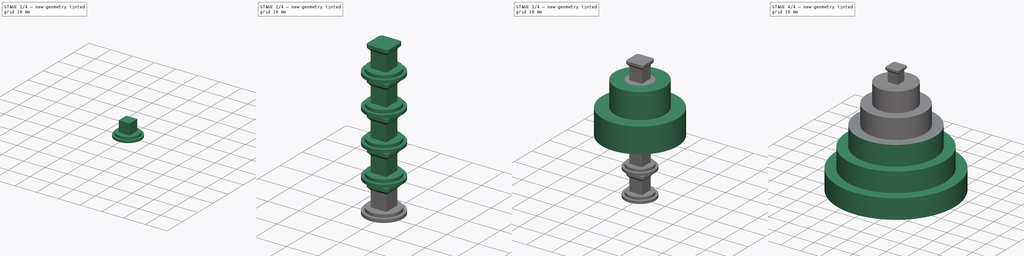
[diagram: build sequence overview — one tinted view per stage of 4, left to right]
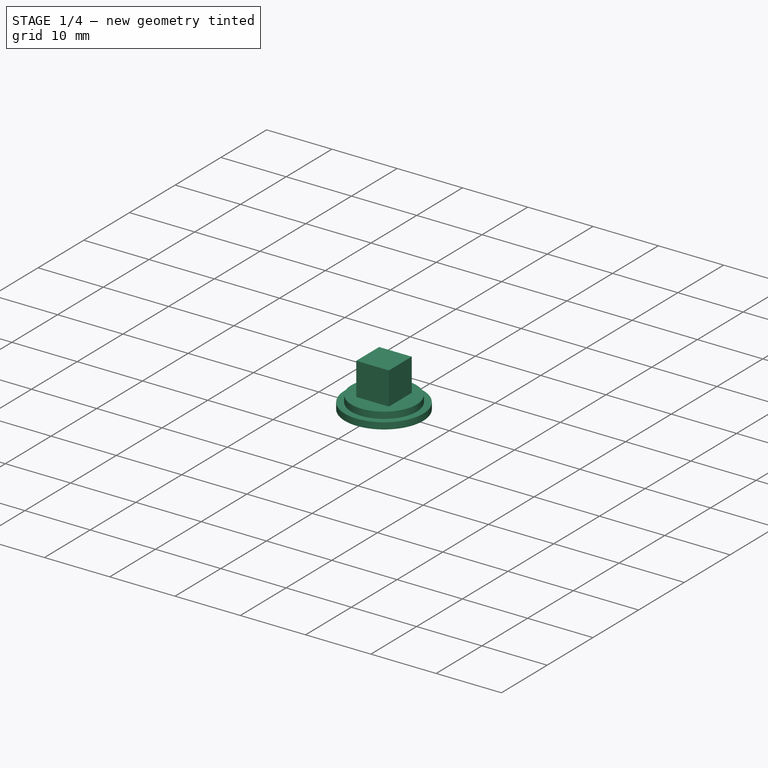
[diagram: stage 1 of 4 — iso view after this stage's code; geometry added in this stage tinted green]
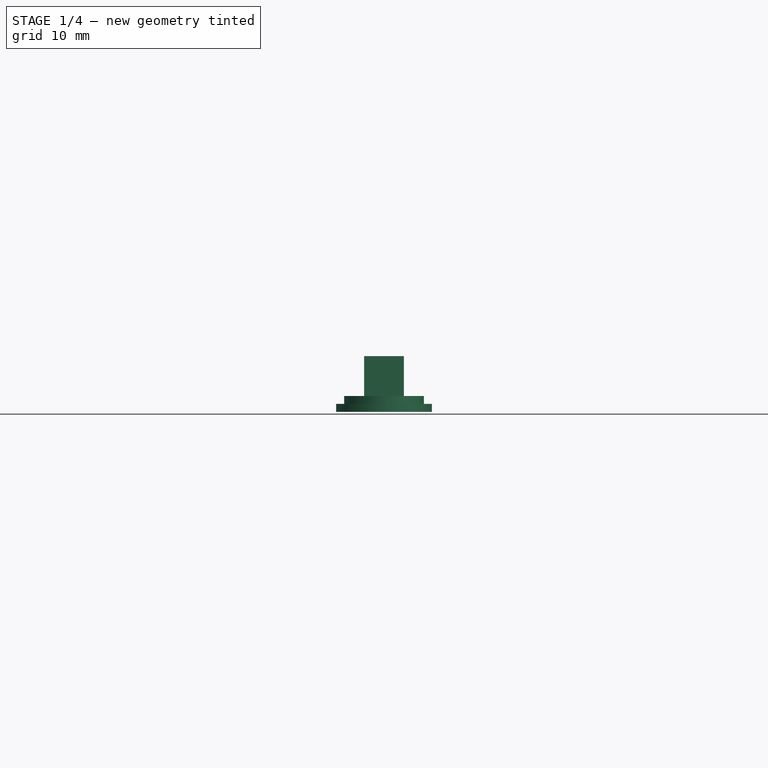
[diagram: stage 1 of 4 — front view after this stage's code; geometry added in this stage tinted green]
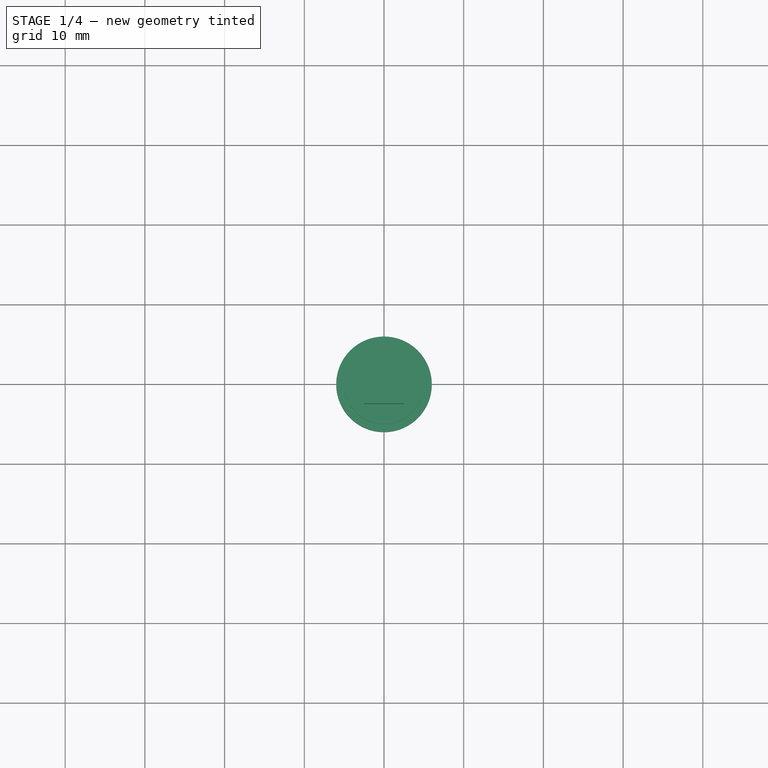
[diagram: stage 1 of 4 — top view after this stage's code; geometry added in this stage tinted green]
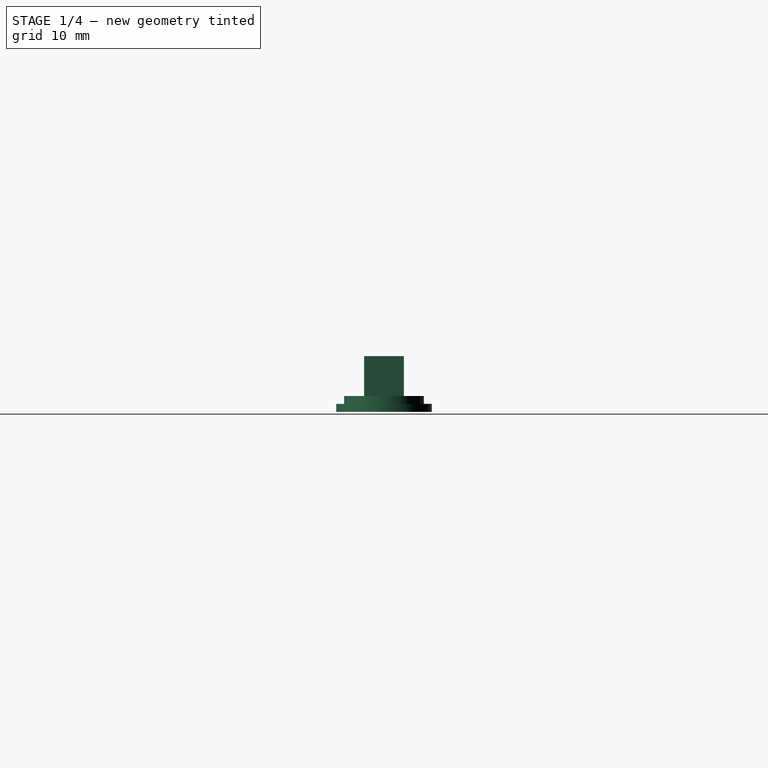
[diagram: stage 1 of 4 — right view after this stage's code; geometry added in this stage tinted green]
FCSTD DOCUMENT  (FreeCAD 0.14R3539 (Git))
Label: hanoi
License: CC-BY 3.0
LicenseURL: http://creativecommons.org/licenses/by/3.0/
objects: Sketcher::SketchObject×9, PartDesign::Revolution×5, PartDesign::Pad×4, PartDesign::Chamfer×1, Part::FeaturePython×1
note: 29 computed .brp shape members not serialized (recipe doc carries the construction recipe); baked Part::Feature solids carry a one-line shape summary decoded from their .brp

FEATURE [Sketcher::SketchObject] Sketch001
  Placement = pos=(0,0,8) rot=(0,0,1;0rad)
  sketch-geometry (1):
    g0: Circle CenterX=0 CenterY=0 CenterZ=0 NormalX=0 NormalY=0 NormalZ=1 Radius=6
  constraints (3):
    c: Radius(g0) = 6
    c: DistanceX(g0) = 0
    c: DistanceY(g0) = 0
FEATURE [PartDesign::Pad] Pad
  Length = 1
  Length2 = 100
  Placement = pos=(0,0,8) rot=(0,0,1;0rad)
  Sketch = -> Sketch001
  Type = 0
FEATURE [Sketcher::SketchObject] Sketch002
  Placement = pos=(0,0,9) rot=(0,0,1;0rad)
  Support = -> Pad [Face3]
  sketch-geometry (1):
    g0: Circle CenterX=0 CenterY=0 CenterZ=0 NormalX=0 NormalY=0 NormalZ=1 Radius=5
  constraints (3):
    c: DistanceX(g0) = 0
    c: DistanceY(g0) = 0
    c: Radius(g0) = 5
FEATURE [PartDesign::Pad] Pad001
  Length = 1
  Length2 = 100
  Placement = pos=(0,0,8) rot=(0,0,1;0rad)
  Sketch = -> Sketch002
  Type = 0
FEATURE [Sketcher::SketchObject] Sketch003
  Placement = pos=(0,0,10) rot=(0,0,1;0rad)
  Support = -> Pad001 [Face5]
  sketch-geometry (4):
    g0: LineSegment StartX=-2.5 StartY=2.5 StartZ=0 EndX=2.5 EndY=2.5 EndZ=0
    g1: LineSegment StartX=2.5 StartY=2.5 StartZ=0 EndX=2.5 EndY=-2.5 EndZ=0
    g2: LineSegment StartX=2.5 StartY=-2.5 StartZ=0 EndX=-2.5 EndY=-2.5 EndZ=0
    g3: LineSegment StartX=-2.5 StartY=-2.5 StartZ=0 EndX=-2.5 EndY=2.5 EndZ=0
  constraints (11):
    c: Coincident(g0,g1)
    c: Coincident(g1,g2)
    c: Coincident(g2,g3)
    c: Coincident(g3,g0)
    c: Horizontal(g0)
    c: Horizontal(g2)
    c: Vertical(g1)
    c: Vertical(g3)
    c: Symmetric(g0,g1,g-1)
    c: DistanceX(g0) = 5
    c: DistanceY(g1) = -5
FEATURE [PartDesign::Pad] Pad002
  Length = 5
  Length2 = 100
  Placement = pos=(0,0,8) rot=(0,0,1;0rad)
  Sketch = -> Sketch003
  Type = 0
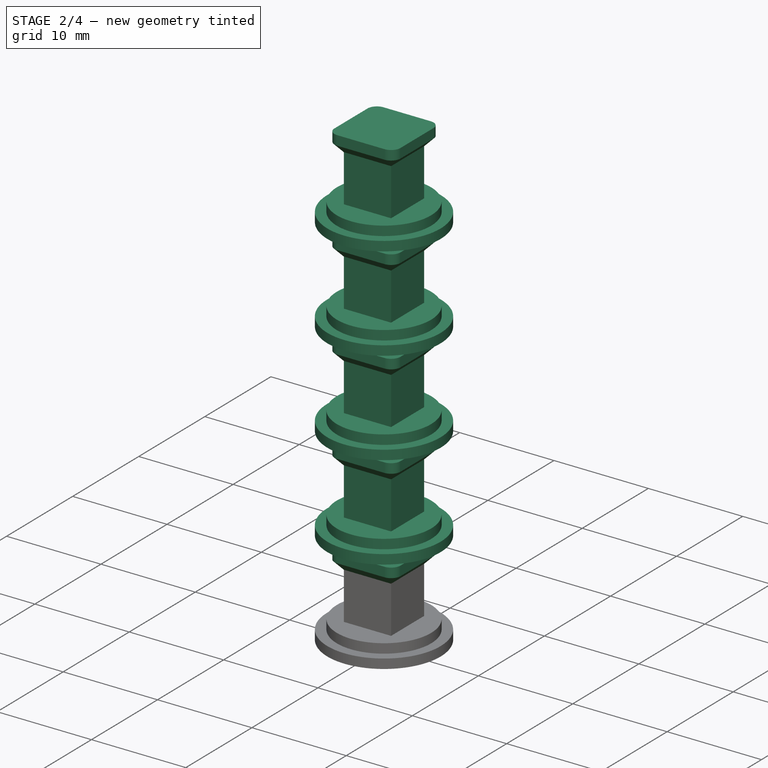
[diagram: stage 2 of 4 — iso view after this stage's code; geometry added in this stage tinted green]
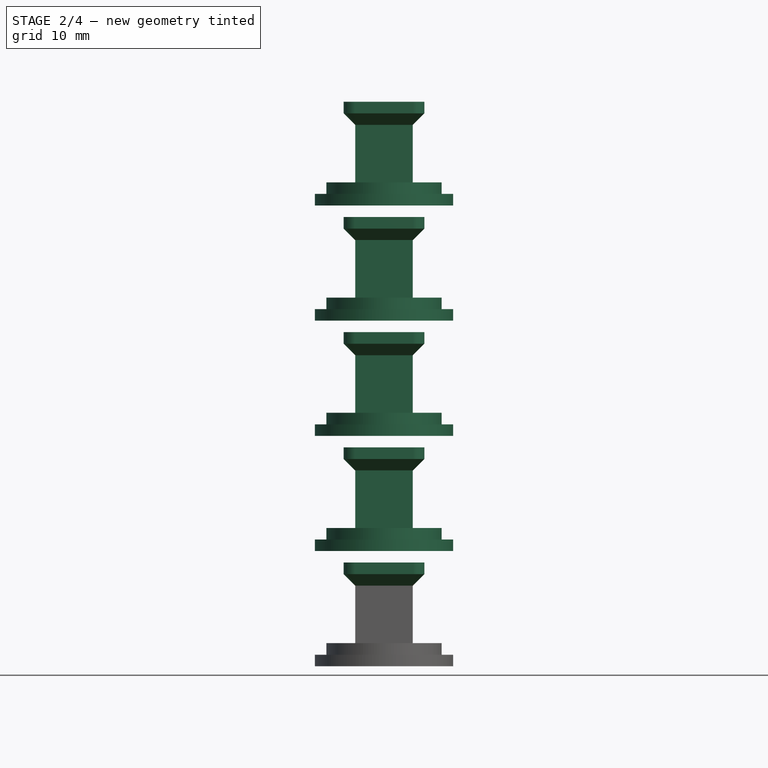
[diagram: stage 2 of 4 — front view after this stage's code; geometry added in this stage tinted green]
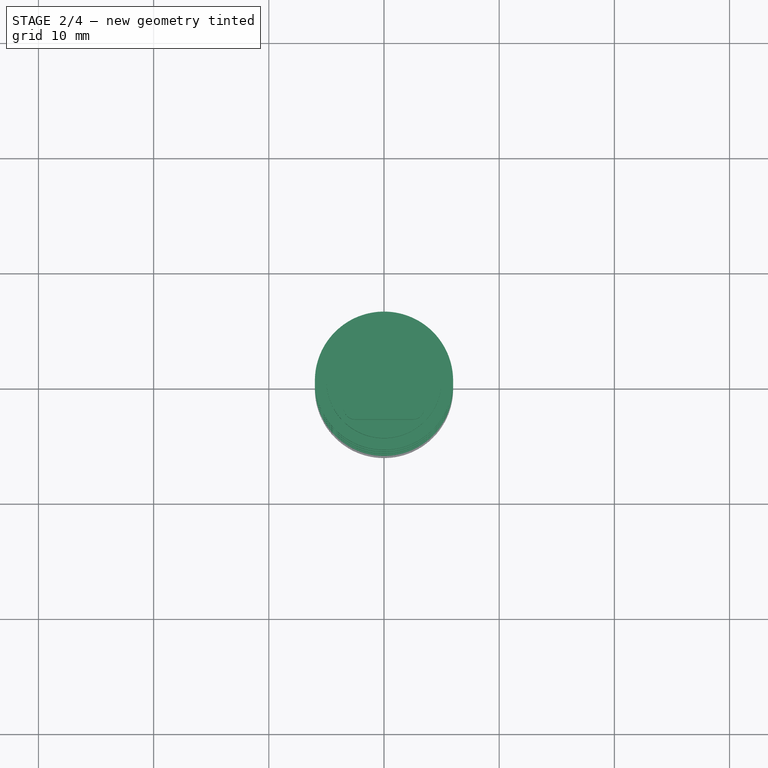
[diagram: stage 2 of 4 — top view after this stage's code; geometry added in this stage tinted green]
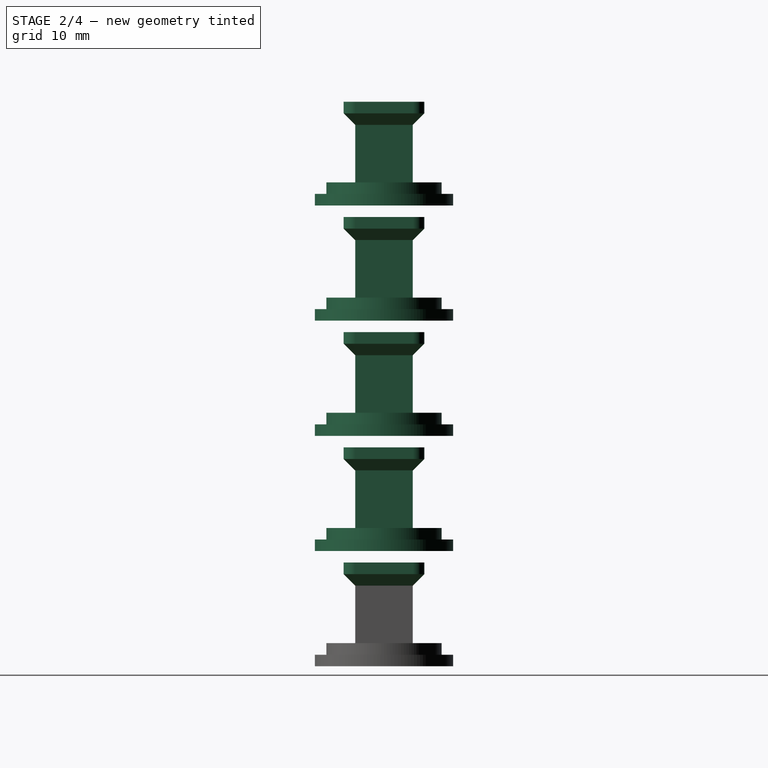
[diagram: stage 2 of 4 — right view after this stage's code; geometry added in this stage tinted green]
FEATURE [Sketcher::SketchObject] Sketch004
  Placement = pos=(0,0,15) rot=(0,0,1;0rad)
  Support = -> Pad002 [Face10]
  sketch-geometry (8):
    g0: LineSegment StartX=-2.5 StartY=3.5 StartZ=0 EndX=2.5 EndY=3.5 EndZ=0
    g1: LineSegment StartX=3.5 StartY=2.5 StartZ=0 EndX=3.5 EndY=-2.5 EndZ=0
    g2: LineSegment StartX=2.5 StartY=-3.5 StartZ=0 EndX=-2.5 EndY=-3.5 EndZ=0
    g3: LineSegment StartX=-3.5 StartY=-2.5 StartZ=0 EndX=-3.5 EndY=2.5 EndZ=0
    g4: ArcOfCircle CenterX=-2.5 CenterY=2.5 CenterZ=0 NormalX=0 NormalY=0 NormalZ=1 Radius=1 StartAngle=1.5708 EndAngle=3.14159
    g5: ArcOfCircle CenterX=2.5 CenterY=2.5 CenterZ=0 NormalX=0 NormalY=0 NormalZ=1 Radius=1 StartAngle=0 EndAngle=1.5708
    g6: ArcOfCircle CenterX=2.5 CenterY=-2.5 CenterZ=0 NormalX=0 NormalY=0 NormalZ=1 Radius=1 StartAngle=4.71239 EndAngle=6.28319
    g7: ArcOfCircle CenterX=-2.5 CenterY=-2.5 CenterZ=0 NormalX=0 NormalY=0 NormalZ=1 Radius=1 StartAngle=3.14159 EndAngle=4.71239
  constraints (19):
    c: Horizontal(g0)
    c: Horizontal(g2)
    c: Vertical(g1)
    c: Vertical(g3)
    c: Tangent(g3,g4)
    c: Tangent(g0,g4)
    c: Tangent(g0,g5)
    c: Tangent(g1,g5)
    c: Tangent(g1,g6)
    c: Tangent(g2,g6)
    c: Tangent(g3,g7)
    c: Tangent(g2,g7)
    c: Radius(g5) = 1
    c: Radius(g7) = 1
    c: Radius(g4) = 1
    c: Radius(g6) = 1
    c: Symmetric(g7,g5,g-1)
    c: DistanceX(g3,g1) = 7
    c: DistanceY(g0,g2) = -7
FEATURE [PartDesign::Pad] Pad003
  Length = 2
  Length2 = 100
  Placement = pos=(0,0,8) rot=(0,0,1;0rad)
  Sketch = -> Sketch004
  Type = 0
FEATURE [PartDesign::Chamfer] Chamfer
  Base = -> Pad003 [Edge21]
  Placement = pos=(0,0,8) rot=(0,0,1;0rad)
  Size = 0.99
FEATURE [Part::FeaturePython] Array  # Draft array (typed FeaturePython)
  Angle = 360
  ArrayType = 0
  Axis = (0,0,1)
  Base = -> Chamfer
  Center = (0,0,0)
  IntervalX = (1,0,0)
  IntervalY = (0,1,0)
  IntervalZ = (0,0,10)
  NumberPolar = 1
  NumberX = 1
  NumberY = 1
  NumberZ = 5
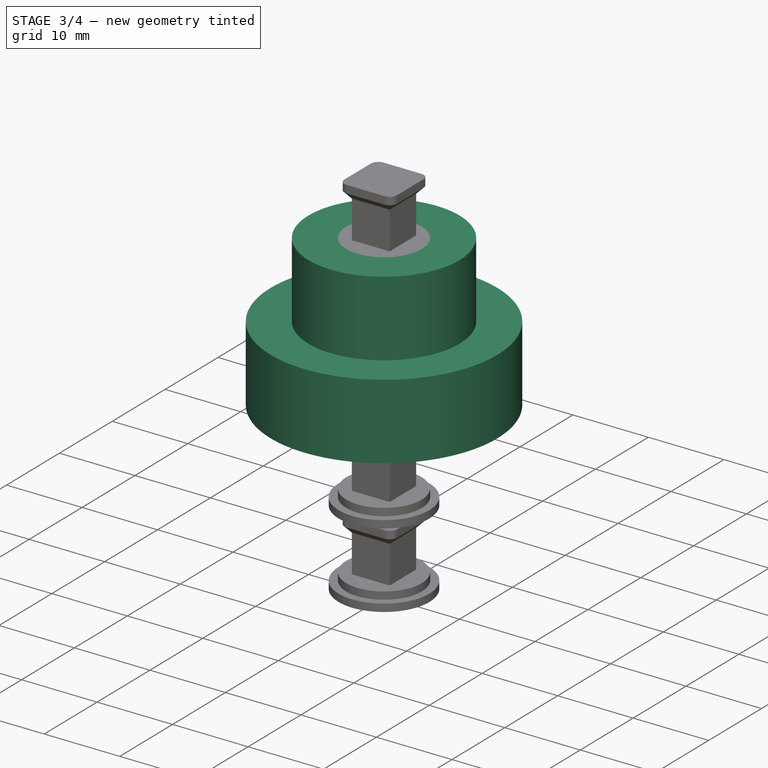
[diagram: stage 3 of 4 — iso view after this stage's code; geometry added in this stage tinted green]
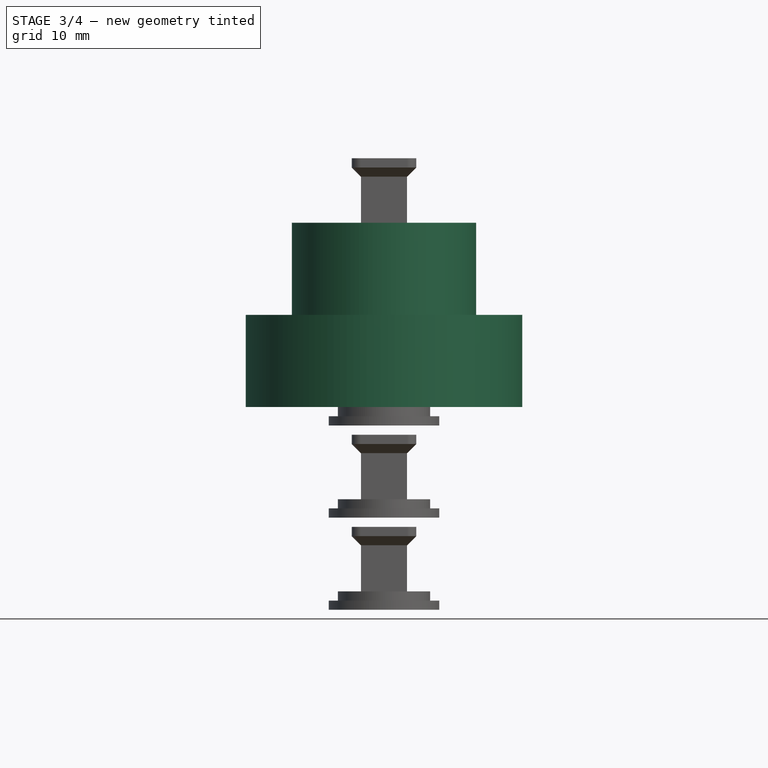
[diagram: stage 3 of 4 — front view after this stage's code; geometry added in this stage tinted green]
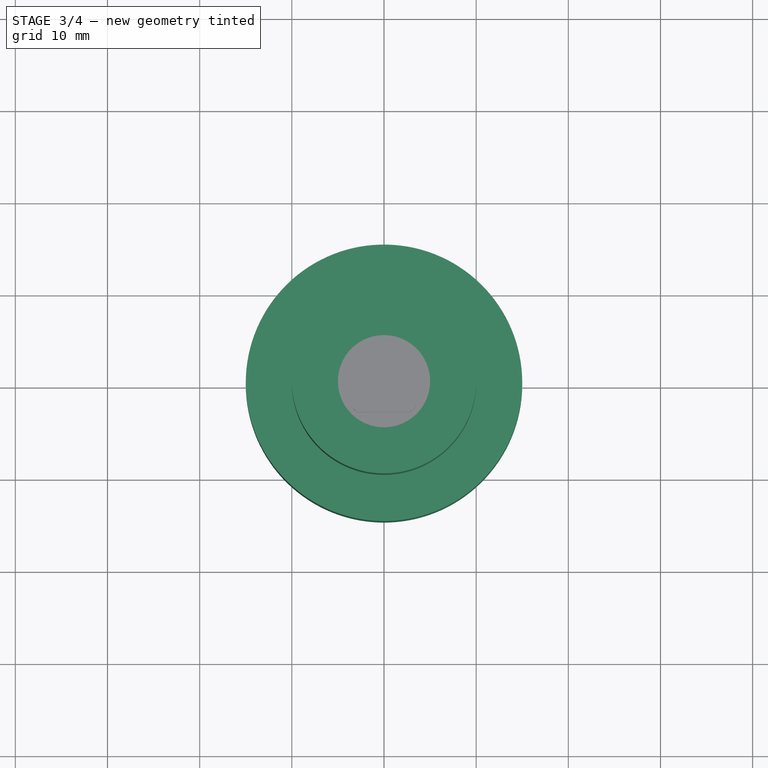
[diagram: stage 3 of 4 — top view after this stage's code; geometry added in this stage tinted green]
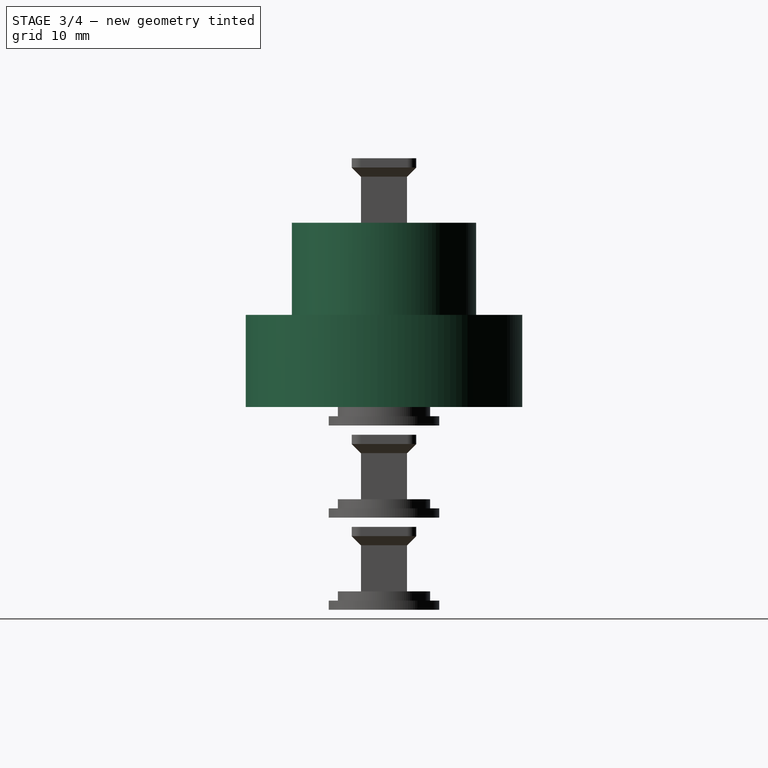
[diagram: stage 3 of 4 — right view after this stage's code; geometry added in this stage tinted green]
FEATURE [PartDesign::Revolution] Revolution003
  Angle = 360
  Axis = (0,0,1)
  Base = (0,0,30)
  Placement = pos=(0,0,30) rot=(1,0,0;1.5708rad)
  ReferenceAxis = -> Sketch007 [V_Axis]
  Reversed = true
  Sketch = -> Sketch007
FEATURE [PartDesign::Revolution] Revolution004
  Angle = 360
  Axis = (0,0,1)
  Base = (0,0,40)
  Placement = pos=(0,0,40) rot=(1,0,0;1.5708rad)
  ReferenceAxis = -> Sketch008 [V_Axis]
  Reversed = true
  Sketch = -> Sketch008
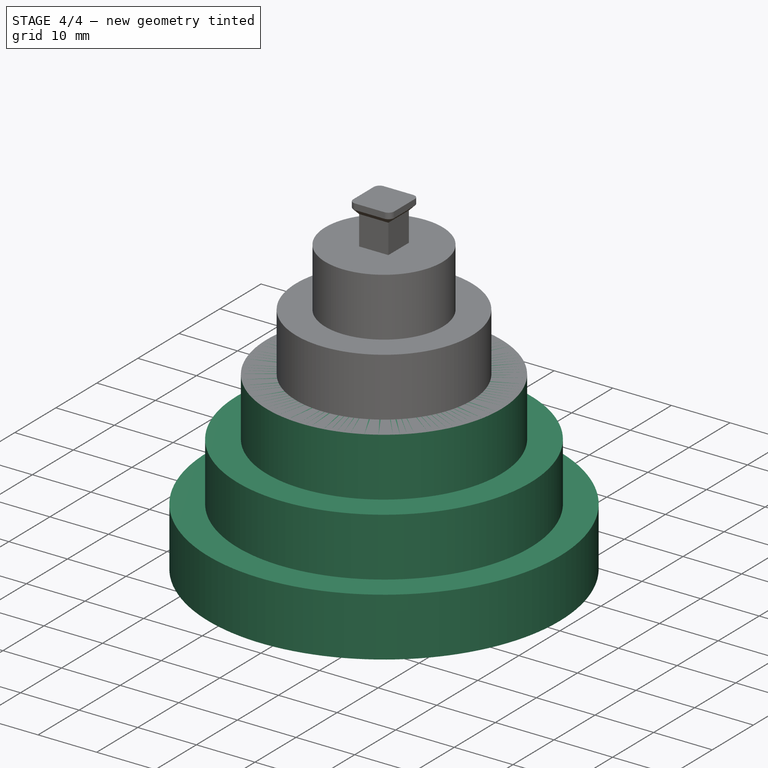
[diagram: stage 4 of 4 — iso view after this stage's code; geometry added in this stage tinted green]
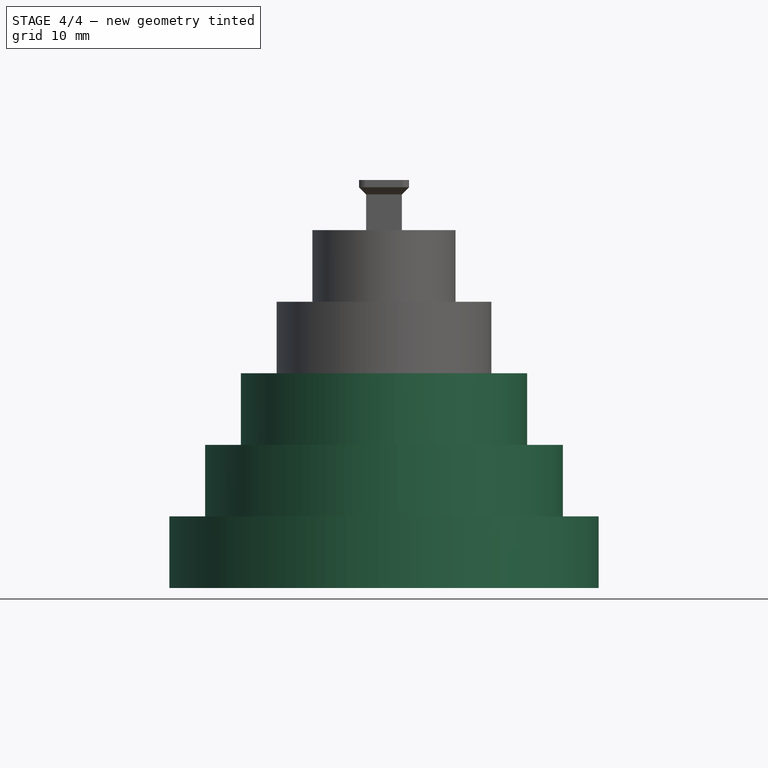
[diagram: stage 4 of 4 — front view after this stage's code; geometry added in this stage tinted green]
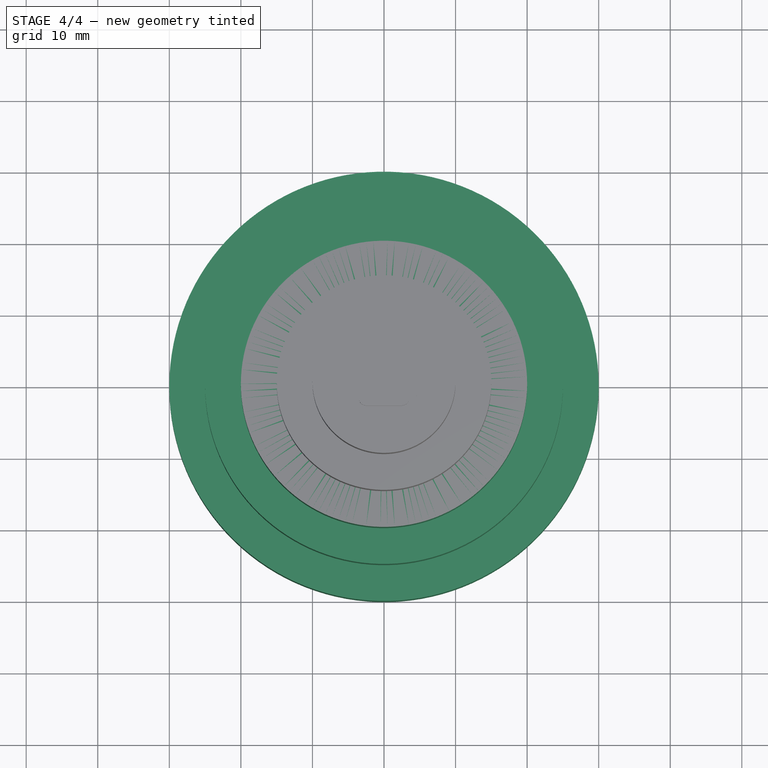
[diagram: stage 4 of 4 — top view after this stage's code; geometry added in this stage tinted green]
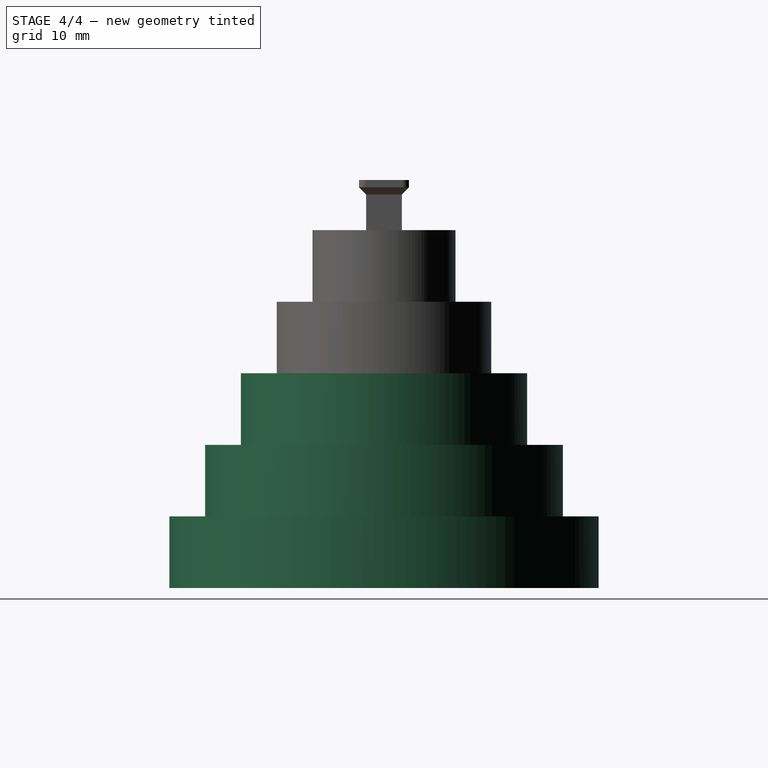
[diagram: stage 4 of 4 — right view after this stage's code; geometry added in this stage tinted green]
FEATURE [Sketcher::SketchObject] Sketch
  Placement = pos=(0,0,0) rot=(-1,0,0;4.71239rad)
  sketch-geometry (6):
    g0: LineSegment StartX=5 StartY=10 StartZ=0 EndX=30 EndY=10 EndZ=0
    g1: LineSegment StartX=30 StartY=10 StartZ=0 EndX=30 EndY=0 EndZ=0
    g2: LineSegment StartX=28 StartY=9 StartZ=0 EndX=5 EndY=9 EndZ=0
    g3: LineSegment StartX=5 StartY=9 StartZ=0 EndX=5 EndY=10 EndZ=0
    g4: LineSegment StartX=30 StartY=0 StartZ=0 EndX=28 EndY=0 EndZ=0
    g5: LineSegment StartX=28 StartY=0 StartZ=0 EndX=28 EndY=9 EndZ=0
  constraints (18):
    c: Coincident(g0,g1)
    c: Horizontal(g0)
    c: Vertical(g1)
    c: Coincident(g2,g3)
    c: Coincident(g4,g5)
    c: Coincident(g5,g2)
    c: Horizontal(g2)
    c: Horizontal(g4)
    c: Vertical(g3)
    c: Vertical(g5)
    c: Coincident(g3,g0)
    c: Coincident(g4,g1)
    c: DistanceX(g4) = -2
    c: DistanceY(g3) = 1
    c: DistanceX(g0) = 30
    c: DistanceY(g0) = 10
    c: DistanceY(g-1,g4) = 0
    c: DistanceX(g-1,g0) = 5
FEATURE [Sketcher::SketchObject] Sketch005
  Placement = pos=(0,0,10) rot=(1,0,0;1.5708rad)
  sketch-geometry (6):
    g0: LineSegment StartX=5 StartY=10 StartZ=0 EndX=25 EndY=10 EndZ=0
    g1: LineSegment StartX=25 StartY=10 StartZ=0 EndX=25 EndY=0 EndZ=0
    g2: LineSegment StartX=23 StartY=9 StartZ=0 EndX=5 EndY=9 EndZ=0
    g3: LineSegment StartX=5 StartY=9 StartZ=0 EndX=5 EndY=10 EndZ=0
    g4: LineSegment StartX=25 StartY=0 StartZ=0 EndX=23 EndY=0 EndZ=0
    g5: LineSegment StartX=23 StartY=0 StartZ=0 EndX=23 EndY=9 EndZ=0
  constraints (18):
    c: Coincident(g0,g1)
    c: Horizontal(g0)
    c: Vertical(g1)
    c: Coincident(g2,g3)
    c: Coincident(g4,g5)
    c: Coincident(g5,g2)
    c: Horizontal(g2)
    c: Horizontal(g4)
    c: Vertical(g3)
    c: Vertical(g5)
    c: Coincident(g3,g0)
    c: Coincident(g4,g1)
    c: DistanceX(g4) = -2
    c: DistanceY(g3) = 1
    c: DistanceX(g0) = 25
    c: DistanceY(g0) = 10
    c: DistanceY(g-1,g4) = 0
    c: DistanceX(g-1,g0) = 5
FEATURE [Sketcher::SketchObject] Sketch006
  Placement = pos=(0,0,20) rot=(1,0,0;1.5708rad)
  sketch-geometry (6):
    g0: LineSegment StartX=5 StartY=10 StartZ=0 EndX=20 EndY=10 EndZ=0
    g1: LineSegment StartX=20 StartY=10 StartZ=0 EndX=20 EndY=0 EndZ=0
    g2: LineSegment StartX=18 StartY=9 StartZ=0 EndX=5 EndY=9 EndZ=0
    g3: LineSegment StartX=5 StartY=9 StartZ=0 EndX=5 EndY=10 EndZ=0
    g4: LineSegment StartX=20 StartY=0 StartZ=0 EndX=18 EndY=0 EndZ=0
    g5: LineSegment StartX=18 StartY=0 StartZ=0 EndX=18 EndY=9 EndZ=0
  constraints (18):
    c: Coincident(g0,g1)
    c: Horizontal(g0)
    c: Vertical(g1)
    c: Coincident(g2,g3)
    c: Coincident(g4,g5)
    c: Coincident(g5,g2)
    c: Horizontal(g2)
    c: Horizontal(g4)
    c: Vertical(g3)
    c: Vertical(g5)
    c: Coincident(g3,g0)
    c: Coincident(g4,g1)
    c: DistanceX(g4) = -2
    c: DistanceY(g3) = 1
    c: DistanceX(g0) = 20
    c: DistanceY(g0) = 10
    c: DistanceY(g-1,g4) = 0
    c: DistanceX(g-1,g0) = 5
FEATURE [Sketcher::SketchObject] Sketch007
  Placement = pos=(0,0,30) rot=(1,0,0;1.5708rad)
  sketch-geometry (6):
    g0: LineSegment StartX=5 StartY=10 StartZ=0 EndX=15 EndY=10 EndZ=0
    g1: LineSegment StartX=15 StartY=10 StartZ=0 EndX=15 EndY=0 EndZ=0
    g2: LineSegment StartX=13 StartY=9 StartZ=0 EndX=5 EndY=9 EndZ=0
    g3: LineSegment StartX=5 StartY=9 StartZ=0 EndX=5 EndY=10 EndZ=0
    g4: LineSegment StartX=15 StartY=0 StartZ=0 EndX=13 EndY=0 EndZ=0
    g5: LineSegment StartX=13 StartY=0 StartZ=0 EndX=13 EndY=9 EndZ=0
  constraints (18):
    c: Coincident(g0,g1)
    c: Horizontal(g0)
    c: Vertical(g1)
    c: Coincident(g2,g3)
    c: Coincident(g4,g5)
    c: Coincident(g5,g2)
    c: Horizontal(g2)
    c: Horizontal(g4)
    c: Vertical(g3)
    c: Vertical(g5)
    c: Coincident(g3,g0)
    c: Coincident(g4,g1)
    c: DistanceX(g4) = -2
    c: DistanceY(g3) = 1
    c: DistanceX(g0) = 15
    c: DistanceY(g0) = 10
    c: DistanceY(g-1,g4) = 0
    c: DistanceX(g-1,g0) = 5
FEATURE [Sketcher::SketchObject] Sketch008
  Placement = pos=(0,0,40) rot=(1,0,0;1.5708rad)
  sketch-geometry (6):
    g0: LineSegment StartX=5 StartY=10 StartZ=0 EndX=10 EndY=10 EndZ=0
    g1: LineSegment StartX=10 StartY=10 StartZ=0 EndX=10 EndY=0 EndZ=0
    g2: LineSegment StartX=8 StartY=9 StartZ=0 EndX=5 EndY=9 EndZ=0
    g3: LineSegment StartX=5 StartY=9 StartZ=0 EndX=5 EndY=10 EndZ=0
    g4: LineSegment StartX=10 StartY=0 StartZ=0 EndX=8 EndY=0 EndZ=0
    g5: LineSegment StartX=8 StartY=0 StartZ=0 EndX=8 EndY=9 EndZ=0
  constraints (18):
    c: Coincident(g0,g1)
    c: Horizontal(g0)
    c: Vertical(g1)
    c: Coincident(g2,g3)
    c: Coincident(g4,g5)
    c: Coincident(g5,g2)
    c: Horizontal(g2)
    c: Horizontal(g4)
    c: Vertical(g3)
    c: Vertical(g5)
    c: Coincident(g3,g0)
    c: Coincident(g4,g1)
    c: DistanceX(g4) = -2
    c: DistanceY(g3) = 1
    c: DistanceX(g0) = 10
    c: DistanceY(g0) = 10
    c: DistanceY(g-1,g4) = 0
    c: DistanceX(g-1,g0) = 5
FEATURE [PartDesign::Revolution] Revolution
  Angle = 360
  Axis = (0,0,1)
  Base = (0,0,0)
  Placement = pos=(0,0,0) rot=(-1,0,0;4.71239rad)
  ReferenceAxis = -> Sketch [V_Axis]
  Reversed = true
  Sketch = -> Sketch
FEATURE [PartDesign::Revolution] Revolution001
  Angle = 360
  Axis = (0,0,1)
  Base = (0,0,10)
  Placement = pos=(0,0,10) rot=(1,0,0;1.5708rad)
  ReferenceAxis = -> Sketch005 [V_Axis]
  Reversed = true
  Sketch = -> Sketch005
FEATURE [PartDesign::Revolution] Revolution002
  Angle = 360
  Axis = (0,0,1)
  Base = (0,0,20)
  Placement = pos=(0,0,20) rot=(1,0,0;1.5708rad)
  ReferenceAxis = -> Sketch006 [V_Axis]
  Reversed = true
  Sketch = -> Sketch006
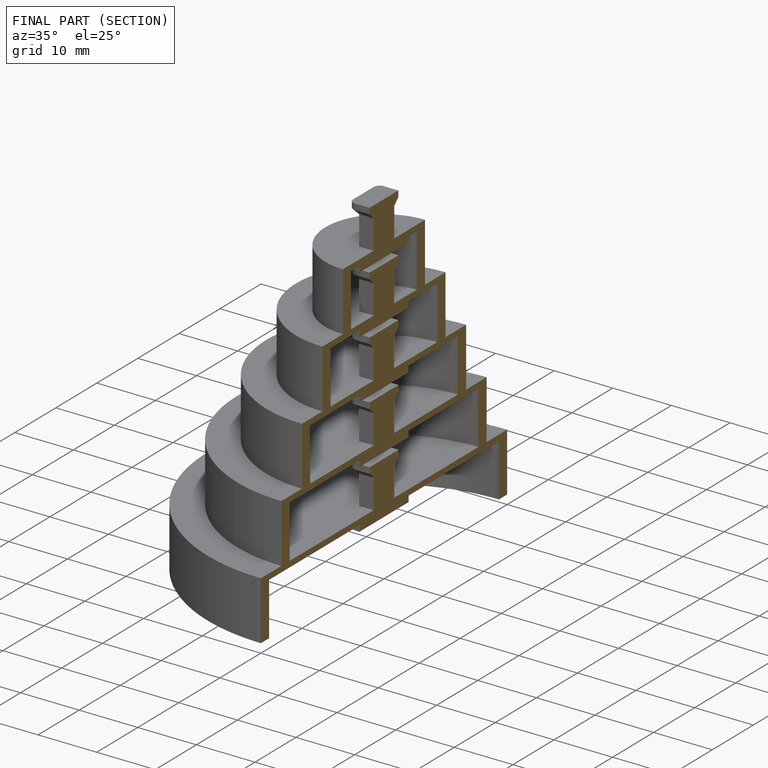
[diagram: finished part — half-section view (interior)]
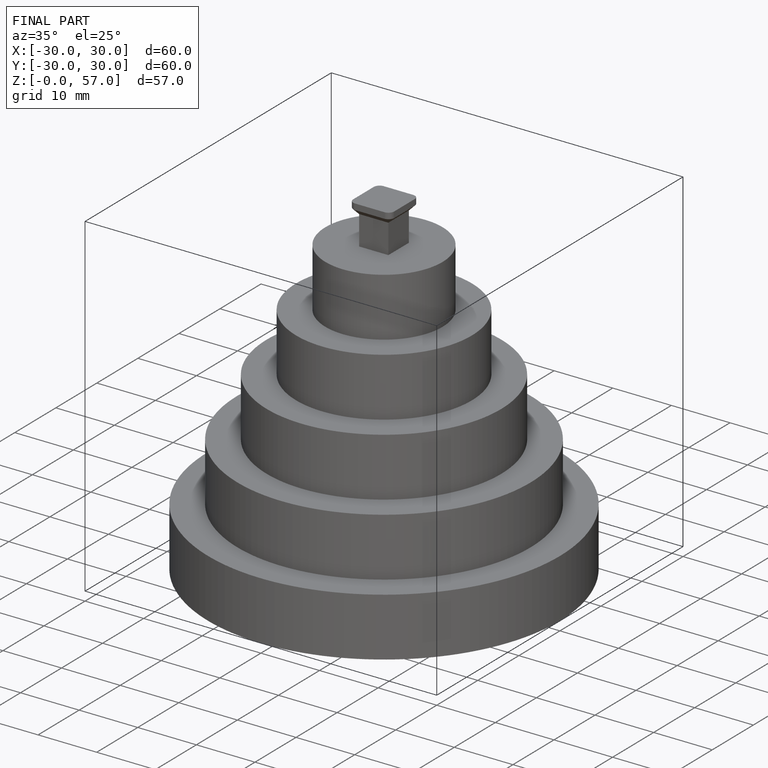
[diagram: finished part — iso view with bounding-box wireframe]
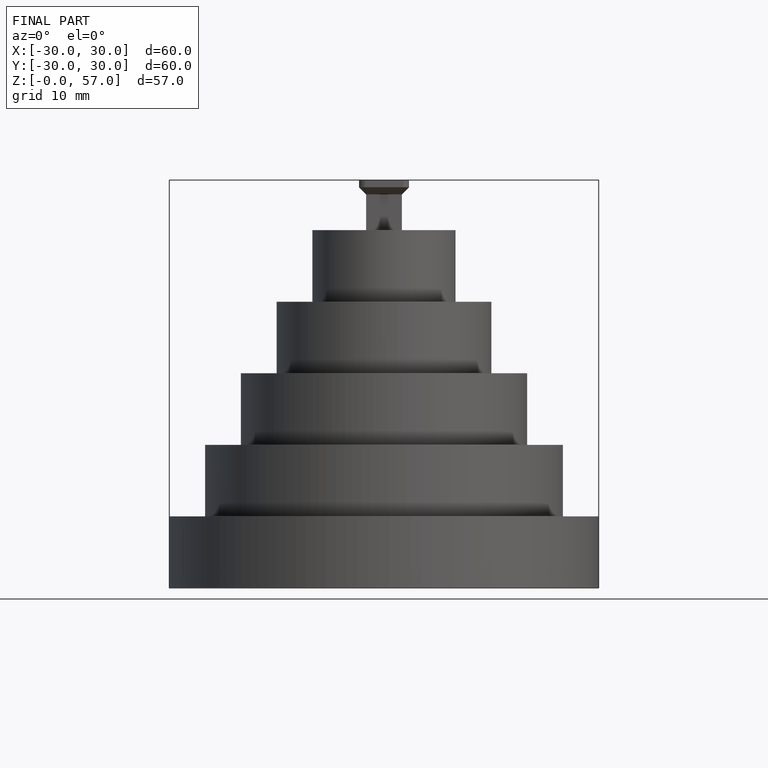
[diagram: finished part — front view with bounding-box wireframe]
